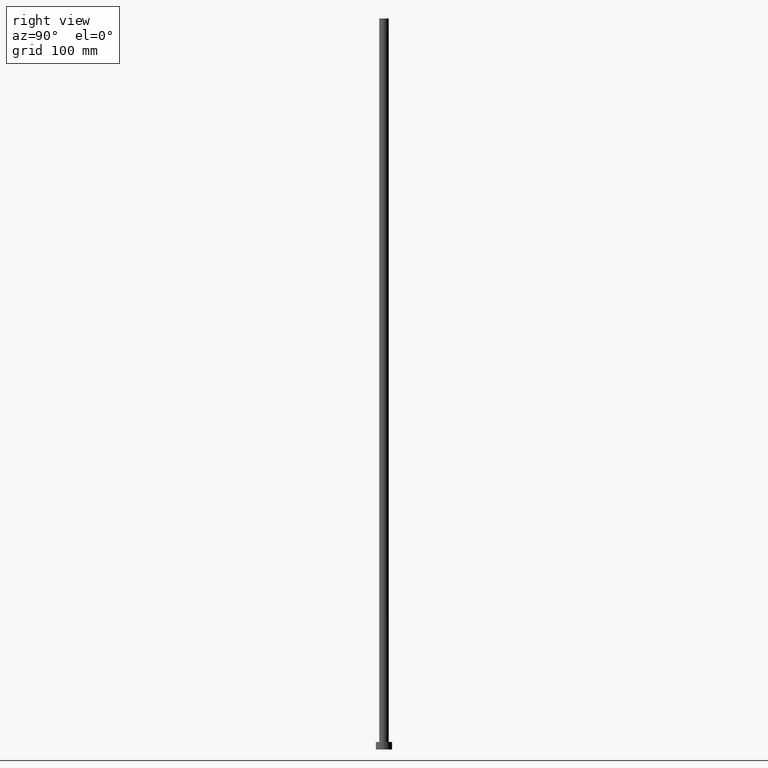
[diagram: clean part render]
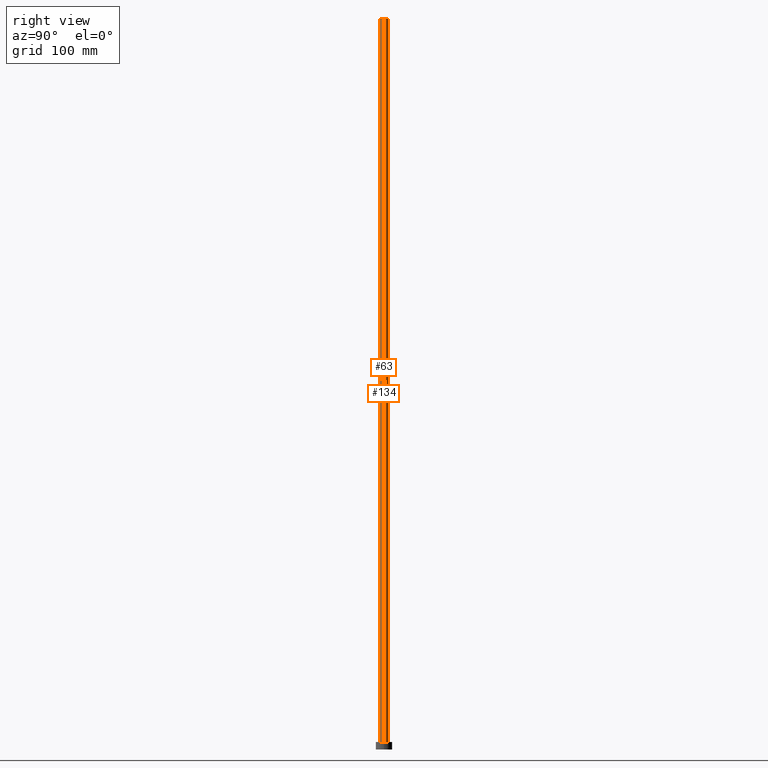
[diagram: same view with one multi-face feature highlighted, each face labeled with its STEP entity id]
A machine part, right view. The highlighted faces form ONE feature: a constant-radius fillet chain: 2 tangent blend faces with common blend radius 4.1 mm. The faces share edges in the B-rep.
Their STEP definitions:
[1] entity #134 (Cylinder):
#5 = VERTEX_POINT ( 'NONE', #83 ) ;
#7 = DIRECTION ( 'NONE',  ( -0.000000000000000000, -0.000000000000000000, -1.000000000000000000 ) ) ;
#22 = AXIS2_PLACEMENT_3D ( 'NONE', #219, #203, #47 ) ;
#34 = DIRECTION ( 'NONE',  ( -0.000000000000000000, -0.000000000000000000, -1.000000000000000000 ) ) ;
#36 = DIRECTION ( 'NONE',  ( 1.000000000000000000, 0.000000000000000000, 0.000000000000000000 ) ) ;
#44 = EDGE_CURVE ( 'NONE', #179, #5, #139, .T. ) ;
#47 = DIRECTION ( 'NONE',  ( 1.000000000000000000, 0.000000000000000000, 0.000000000000000000 ) ) ;
#59 = VERTEX_POINT ( 'NONE', #248 ) ;
#81 = VECTOR ( 'NONE', #34, 1000.000000000000000 ) ;
#83 = CARTESIAN_POINT ( 'NONE',  ( -4.099999999999999645, 0.000000000000000000, 6.500000000000000000 ) ) ;
#87 = DIRECTION ( 'NONE',  ( -1.000000000000000000, 0.000000000000000000, 0.000000000000000000 ) ) ;
#91 = CARTESIAN_POINT ( 'NONE',  ( 4.099999999999999645, 5.021051876504146399E-16, 6.500000000000000000 ) ) ;
#105 = CARTESIAN_POINT ( 'NONE',  ( -4.099999999999999645, 0.000000000000000000, 630.0000000000000000 ) ) ;
#109 = CARTESIAN_POINT ( 'NONE',  ( 4.099999999999999645, 5.021051876504146399E-16, 630.0000000000000000 ) ) ;
#110 = CARTESIAN_POINT ( 'NONE',  ( 0.000000000000000000, 0.000000000000000000, 630.0000000000000000 ) ) ;
#112 = VECTOR ( 'NONE', #233, 1000.000000000000000 ) ;
#114 = EDGE_CURVE ( 'NONE', #121, #59, #243, .T. ) ;
#121 = VERTEX_POINT ( 'NONE', #220 ) ;
#129 = AXIS2_PLACEMENT_3D ( 'NONE', #110, #7, #87 ) ;
#134 = ADVANCED_FACE ( 'NONE', ( #232 ), #247, .T. ) ;
#136 = ORIENTED_EDGE ( 'NONE', *, *, #44, .T. ) ;
#139 = CIRCLE ( 'NONE', #161, 4.099999999999999645 ) ;
#143 = LINE ( 'NONE', #105, #81 ) ;
#151 = EDGE_CURVE ( 'NONE', #59, #5, #143, .T. ) ;
#161 = AXIS2_PLACEMENT_3D ( 'NONE', #164, #244, #36 ) ;
#164 = CARTESIAN_POINT ( 'NONE',  ( 0.000000000000000000, 0.000000000000000000, 6.500000000000000000 ) ) ;
#167 = EDGE_LOOP ( 'NONE', ( #215, #190, #136, #173 ) ) ;
#173 = ORIENTED_EDGE ( 'NONE', *, *, #151, .F. ) ;
#179 = VERTEX_POINT ( 'NONE', #91 ) ;
#190 = ORIENTED_EDGE ( 'NONE', *, *, #199, .T. ) ;
#199 = EDGE_CURVE ( 'NONE', #121, #179, #214, .T. ) ;
#203 = DIRECTION ( 'NONE',  ( 0.000000000000000000, 0.000000000000000000, 1.000000000000000000 ) ) ;
#214 = LINE ( 'NONE', #109, #112 ) ;
#215 = ORIENTED_EDGE ( 'NONE', *, *, #114, .F. ) ;
#219 = CARTESIAN_POINT ( 'NONE',  ( 0.000000000000000000, 0.000000000000000000, 630.0000000000000000 ) ) ;
#220 = CARTESIAN_POINT ( 'NONE',  ( 4.099999999999999645, 5.021051876504146399E-16, 630.0000000000000000 ) ) ;
#232 = FACE_OUTER_BOUND ( 'NONE', #167, .T. ) ;
#233 = DIRECTION ( 'NONE',  ( -0.000000000000000000, -0.000000000000000000, -1.000000000000000000 ) ) ;
#243 = CIRCLE ( 'NONE', #22, 4.099999999999999645 ) ;
#244 = DIRECTION ( 'NONE',  ( 0.000000000000000000, 0.000000000000000000, 1.000000000000000000 ) ) ;
#247 = CYLINDRICAL_SURFACE ( 'NONE', #129, 4.099999999999999645 ) ;
#248 = CARTESIAN_POINT ( 'NONE',  ( -4.099999999999999645, 0.000000000000000000, 630.0000000000000000 ) ) ;
[2] entity #63 (Cylinder):
#3 = EDGE_LOOP ( 'NONE', ( #176, #126, #90, #240 ) ) ;
#5 = VERTEX_POINT ( 'NONE', #83 ) ;
#19 = CYLINDRICAL_SURFACE ( 'NONE', #133, 4.099999999999999645 ) ;
#34 = DIRECTION ( 'NONE',  ( -0.000000000000000000, -0.000000000000000000, -1.000000000000000000 ) ) ;
#35 = DIRECTION ( 'NONE',  ( 0.000000000000000000, 0.000000000000000000, 1.000000000000000000 ) ) ;
#39 = CIRCLE ( 'NONE', #148, 4.099999999999999645 ) ;
#41 = DIRECTION ( 'NONE',  ( 1.000000000000000000, 0.000000000000000000, 0.000000000000000000 ) ) ;
#57 = DIRECTION ( 'NONE',  ( -1.000000000000000000, 0.000000000000000000, 0.000000000000000000 ) ) ;
#59 = VERTEX_POINT ( 'NONE', #248 ) ;
#63 = ADVANCED_FACE ( 'NONE', ( #132 ), #19, .T. ) ;
#71 = CARTESIAN_POINT ( 'NONE',  ( 0.000000000000000000, 0.000000000000000000, 6.500000000000000000 ) ) ;
#72 = AXIS2_PLACEMENT_3D ( 'NONE', #71, #35, #41 ) ;
#80 = EDGE_CURVE ( 'NONE', #5, #179, #252, .T. ) ;
#81 = VECTOR ( 'NONE', #34, 1000.000000000000000 ) ;
#83 = CARTESIAN_POINT ( 'NONE',  ( -4.099999999999999645, 0.000000000000000000, 6.500000000000000000 ) ) ;
#90 = ORIENTED_EDGE ( 'NONE', *, *, #151, .T. ) ;
#91 = CARTESIAN_POINT ( 'NONE',  ( 4.099999999999999645, 5.021051876504146399E-16, 6.500000000000000000 ) ) ;
#95 = DIRECTION ( 'NONE',  ( -0.000000000000000000, -0.000000000000000000, -1.000000000000000000 ) ) ;
#105 = CARTESIAN_POINT ( 'NONE',  ( -4.099999999999999645, 0.000000000000000000, 630.0000000000000000 ) ) ;
#109 = CARTESIAN_POINT ( 'NONE',  ( 4.099999999999999645, 5.021051876504146399E-16, 630.0000000000000000 ) ) ;
#112 = VECTOR ( 'NONE', #233, 1000.000000000000000 ) ;
#121 = VERTEX_POINT ( 'NONE', #220 ) ;
#126 = ORIENTED_EDGE ( 'NONE', *, *, #245, .F. ) ;
#132 = FACE_OUTER_BOUND ( 'NONE', #3, .T. ) ;
#133 = AXIS2_PLACEMENT_3D ( 'NONE', #193, #95, #57 ) ;
#143 = LINE ( 'NONE', #105, #81 ) ;
#148 = AXIS2_PLACEMENT_3D ( 'NONE', #235, #195, #160 ) ;
#151 = EDGE_CURVE ( 'NONE', #59, #5, #143, .T. ) ;
#160 = DIRECTION ( 'NONE',  ( 1.000000000000000000, 0.000000000000000000, 0.000000000000000000 ) ) ;
#176 = ORIENTED_EDGE ( 'NONE', *, *, #199, .F. ) ;
#179 = VERTEX_POINT ( 'NONE', #91 ) ;
#193 = CARTESIAN_POINT ( 'NONE',  ( 0.000000000000000000, 0.000000000000000000, 630.0000000000000000 ) ) ;
#195 = DIRECTION ( 'NONE',  ( 0.000000000000000000, 0.000000000000000000, 1.000000000000000000 ) ) ;
#199 = EDGE_CURVE ( 'NONE', #121, #179, #214, .T. ) ;
#214 = LINE ( 'NONE', #109, #112 ) ;
#220 = CARTESIAN_POINT ( 'NONE',  ( 4.099999999999999645, 5.021051876504146399E-16, 630.0000000000000000 ) ) ;
#233 = DIRECTION ( 'NONE',  ( -0.000000000000000000, -0.000000000000000000, -1.000000000000000000 ) ) ;
#235 = CARTESIAN_POINT ( 'NONE',  ( 0.000000000000000000, 0.000000000000000000, 630.0000000000000000 ) ) ;
#240 = ORIENTED_EDGE ( 'NONE', *, *, #80, .T. ) ;
#245 = EDGE_CURVE ( 'NONE', #59, #121, #39, .T. ) ;
#248 = CARTESIAN_POINT ( 'NONE',  ( -4.099999999999999645, 0.000000000000000000, 630.0000000000000000 ) ) ;
#252 = CIRCLE ( 'NONE', #72, 4.099999999999999645 ) ;